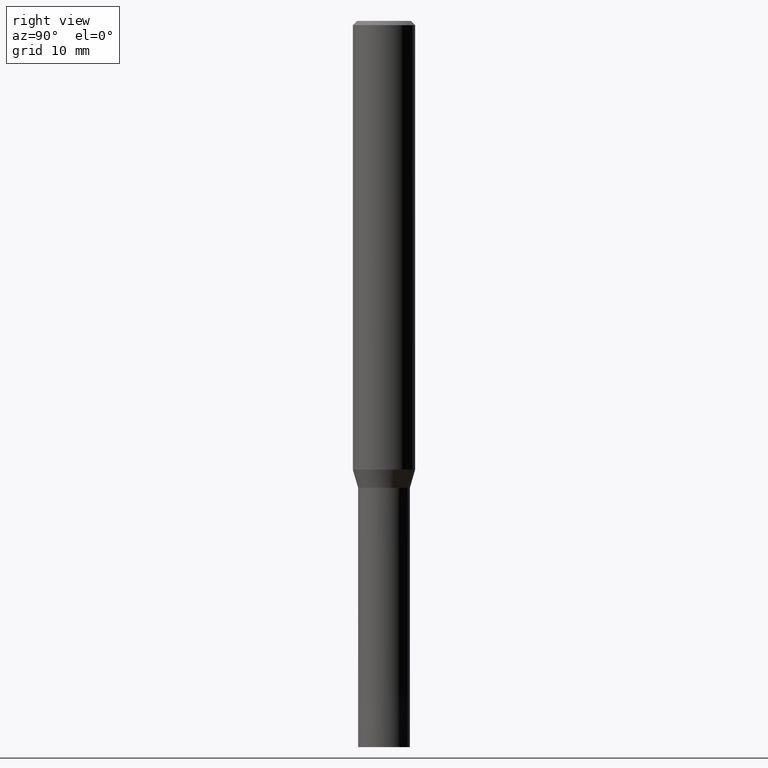
[diagram: clean part render]
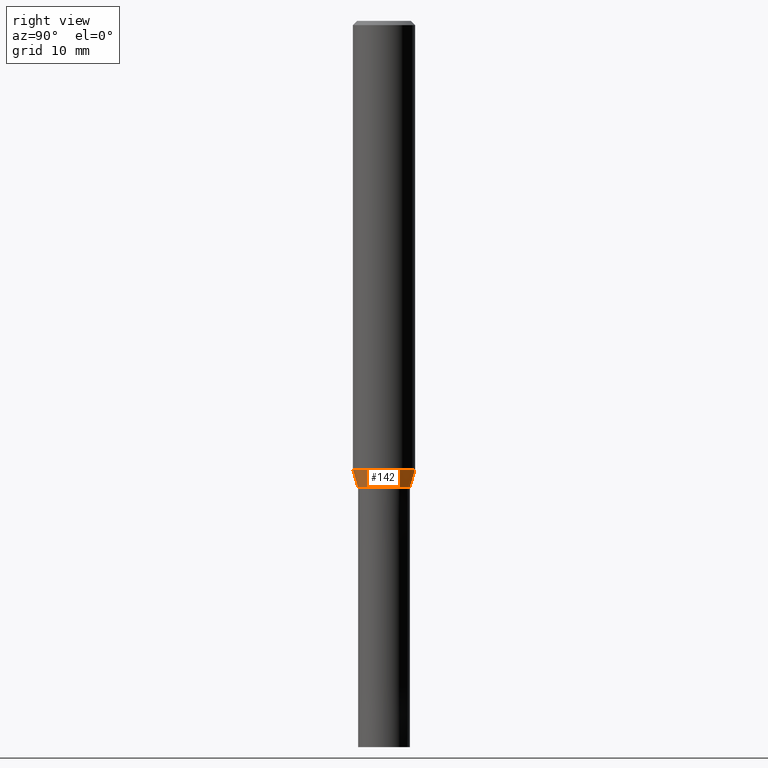
[diagram: same view with one face highlighted and labeled with its STEP entity id]
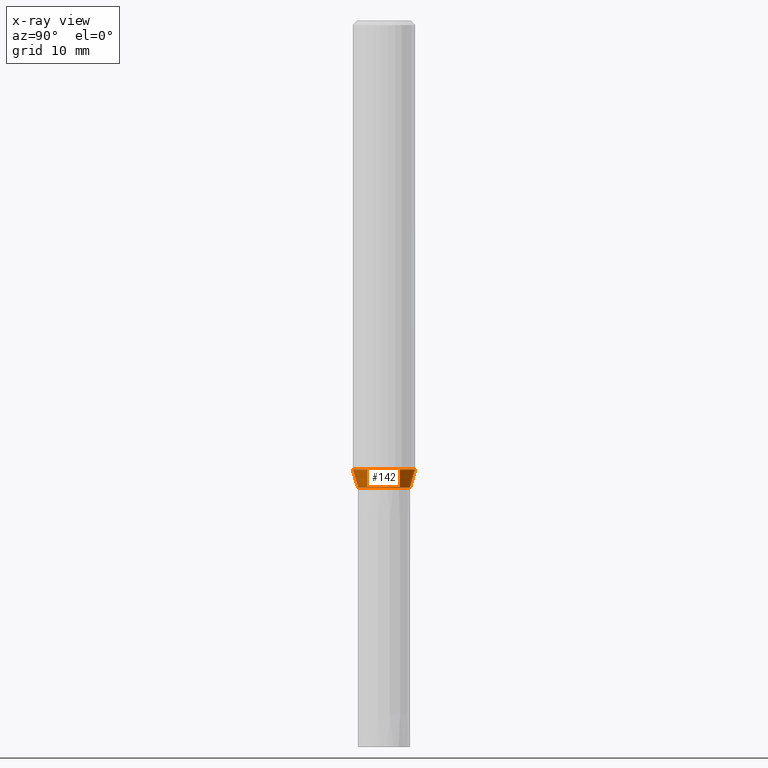
[diagram: x-ray of the same camera — body ghosted, the highlighted face saturated]
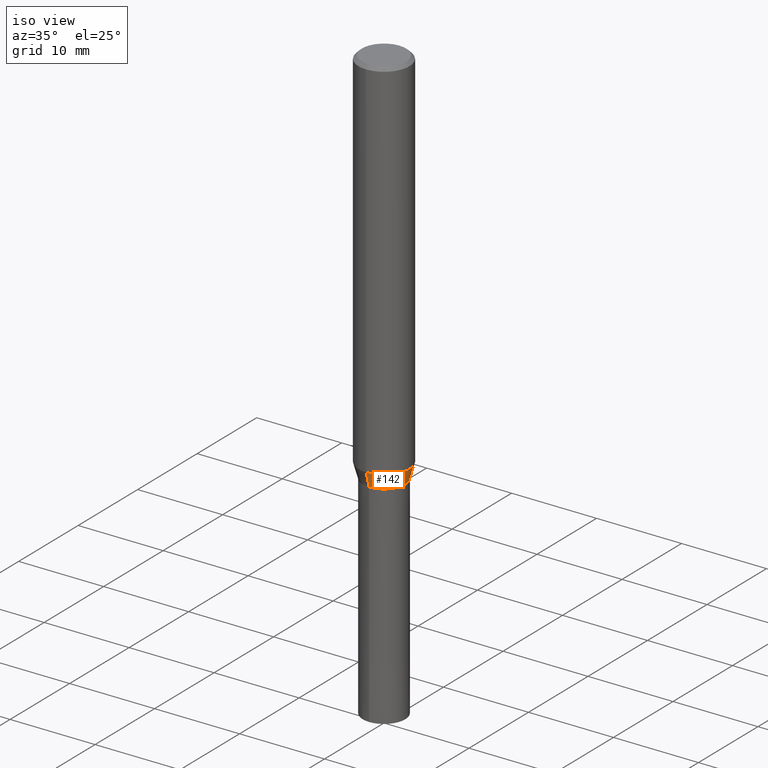
[diagram: same view with one face highlighted and labeled with its STEP entity id]
A machine part, right view. The second image highlights one B-rep face of the part: STEP entity #142.
The next image is the same camera in x-ray: the body ghosted, the highlighted face saturated — about 0% of this face is hidden behind the body in this view.
A second angle (iso view) of the same face is appended — the face is thin or edge-on in the first view.
In plain terms, the highlighted conical surface has half-angle 15.997 deg.
Its self-contained STEP definition (entity closure, byte-faithful):
#86=VERTEX_POINT('',#207);
#88=EDGE_CURVE('',#106,#176,#209,.T.);
#106=VERTEX_POINT('',#228);
#108=EDGE_CURVE('',#86,#176,#230,.T.);
#114=EDGE_CURVE('',#86,#140,#236,.T.);
#138=EDGE_CURVE('',#140,#106,#264,.T.);
#140=VERTEX_POINT('',#266);
#142=ADVANCED_FACE('',(#268),#269,.T.);
#176=VERTEX_POINT('',#310);
#207=CARTESIAN_POINT('',(0.0,2.99995,-43.256));
#209=LINE('',#339,#340);
#228=CARTESIAN_POINT('',(3.06145465423825E-016,-2.49995,-45.0));
#230=CIRCLE('',#366,2.99995);
#236=LINE('',#376,#377);
#264=CIRCLE('',#409,2.49995);
#266=CARTESIAN_POINT('',(0.0,2.49995,-45.0));
#268=FACE_OUTER_BOUND('',#413,.T.);
#269=CONICAL_SURFACE('',#414,2.74995,0.279208199033747);
#310=CARTESIAN_POINT('',(3.67375783114944E-016,-2.99995,-43.256));
#339=CARTESIAN_POINT('',(3.36760624269385E-016,-2.74995,-44.128));
#340=VECTOR('',#477,1.0);
#366=AXIS2_PLACEMENT_3D('',#498,#499,#500);
#376=CARTESIAN_POINT('',(-3.36760624269385E-016,2.74995,-44.128));
#377=VECTOR('',#505,1.0);
#409=AXIS2_PLACEMENT_3D('',#544,#545,#546);
#413=EDGE_LOOP('',(#548,#549,#550,#551));
#414=AXIS2_PLACEMENT_3D('',#552,#553,#554);
#477=DIRECTION('',(3.37494895041124E-017,-0.275594597388538,0.961273955691222));
#498=CARTESIAN_POINT('',(0.0,0.0,-43.256));
#499=DIRECTION('',(0.0,0.0,-1.0));
#500=DIRECTION('',(0.0,1.0,0.0));
#505=DIRECTION('',(3.37494895041124E-017,-0.275594597388538,-0.961273955691222));
#544=CARTESIAN_POINT('',(0.0,0.0,-45.0));
#545=DIRECTION('',(0.0,0.0,-1.0));
#546=DIRECTION('',(0.0,1.0,0.0));
#548=ORIENTED_EDGE('',*,*,#114,.F.);
#549=ORIENTED_EDGE('',*,*,#108,.T.);
#550=ORIENTED_EDGE('',*,*,#88,.F.);
#551=ORIENTED_EDGE('',*,*,#138,.F.);
#552=CARTESIAN_POINT('',(0.0,0.0,-44.128));
#553=DIRECTION('',(-0.0,-0.0,1.0));
#554=DIRECTION('',(0.0,1.0,0.0));